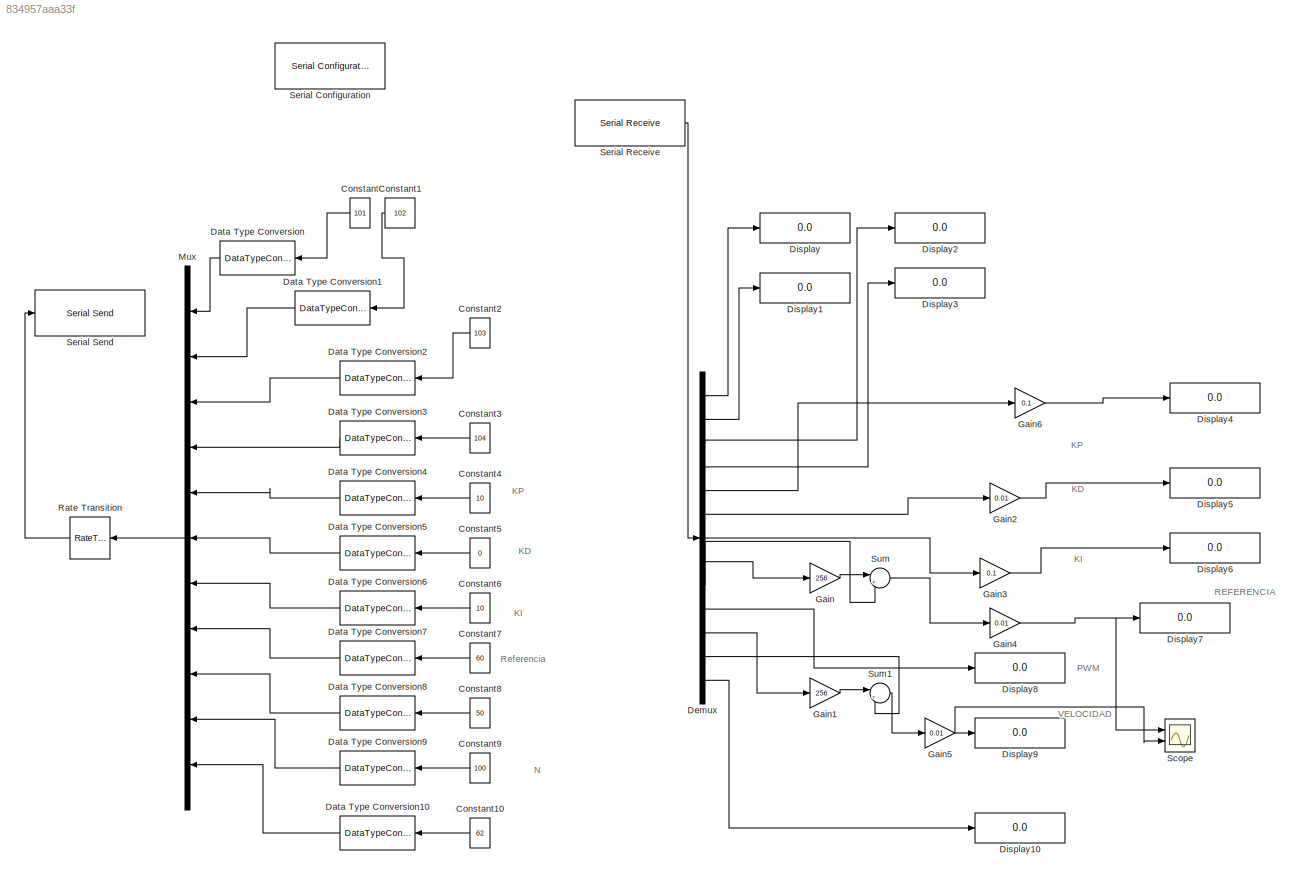
MODEL slx_834957aaa33f
KIND model
CONFIG AbsTol = auto
CONFIG FixedStep = 0.1
CONFIG MaxStep = auto
CONFIG MinStep = auto
CONFIG RelTol = 1e-3
CONFIG SampleTimeConstraint = Unconstrained
CONFIG Solver = FixedStepAuto
CONFIG SolverMode = Auto
CONFIG SolverName = FixedStepAuto
CONFIG StartTime = 0.0
CONFIG StopTime = inf
BLOCK [Constant] Constant
  SampleTime = 0.5
  Value = 101
BLOCK [Constant] Constant1
  SampleTime = 0.5
  Value = 102
BLOCK [Constant] Constant10
  SampleTime = 0.5
  Value = 62
BLOCK [Constant] Constant2
  SampleTime = 0.5
  Value = 103
BLOCK [Constant] Constant3
  SampleTime = 0.5
  Value = 104
BLOCK [Constant] Constant4
  SampleTime = 0.5
  Value = 10
BLOCK [Constant] Constant5
  SampleTime = 0.5
  Value = 0
BLOCK [Constant] Constant6
  SampleTime = 0.5
  Value = 10
BLOCK [Constant] Constant7
  SampleTime = 0.5
  Value = 60
BLOCK [Constant] Constant8
  SampleTime = 0.5
  Value = 50
BLOCK [Constant] Constant9
  SampleTime = 0.5
  Value = 100
BLOCK [DataTypeConversion] Data Type Conversion
  OutDataTypeStr = int8
  RndMeth = Floor
  SaturateOnIntegerOverflow = off
BLOCK [DataTypeConversion] Data Type Conversion1
  OutDataTypeStr = int8
  RndMeth = Floor
  SaturateOnIntegerOverflow = off
BLOCK [DataTypeConversion] Data Type Conversion10
  OutDataTypeStr = int8
  RndMeth = Floor
  SaturateOnIntegerOverflow = off
BLOCK [DataTypeConversion] Data Type Conversion2
  OutDataTypeStr = int8
  RndMeth = Floor
  SaturateOnIntegerOverflow = off
BLOCK [DataTypeConversion] Data Type Conversion3
  OutDataTypeStr = int8
  RndMeth = Floor
  SaturateOnIntegerOverflow = off
BLOCK [DataTypeConversion] Data Type Conversion4
  OutDataTypeStr = int8
  RndMeth = Floor
  SaturateOnIntegerOverflow = off
BLOCK [DataTypeConversion] Data Type Conversion5
  OutDataTypeStr = int8
  RndMeth = Floor
  SaturateOnIntegerOverflow = off
BLOCK [DataTypeConversion] Data Type Conversion6
  OutDataTypeStr = int8
  RndMeth = Floor
  SaturateOnIntegerOverflow = off
BLOCK [DataTypeConversion] Data Type Conversion7
  OutDataTypeStr = int8
  RndMeth = Floor
  SaturateOnIntegerOverflow = off
BLOCK [DataTypeConversion] Data Type Conversion8
  OutDataTypeStr = int8
  RndMeth = Floor
  SaturateOnIntegerOverflow = off
BLOCK [DataTypeConversion] Data Type Conversion9
  OutDataTypeStr = int8
  RndMeth = Floor
  SaturateOnIntegerOverflow = off
BLOCK [Demux] Demux
  DisplayOption = bar
  Outputs = 13
  Ports = [1, 13]
BLOCK [Display] Display
  Decimation = 1
  Ports = [1]
BLOCK [Display] Display1
  Decimation = 1
  Ports = [1]
BLOCK [Display] Display10
  Decimation = 1
  Ports = [1]
BLOCK [Display] Display2
  Decimation = 1
  Ports = [1]
BLOCK [Display] Display3
  Decimation = 1
  Ports = [1]
BLOCK [Display] Display4
  Decimation = 1
  Ports = [1]
BLOCK [Display] Display5
  Decimation = 1
  Ports = [1]
BLOCK [Display] Display6
  Decimation = 1
  Ports = [1]
BLOCK [Display] Display7
  Decimation = 3
  Ports = [1]
BLOCK [Display] Display8
  Decimation = 1
  Ports = [1]
BLOCK [Display] Display9
  Decimation = 1
  Ports = [1]
BLOCK [Gain] Gain
  Gain = 256
  OutDataTypeStr = Inherit: Inherit via internal rule
  ParamDataTypeStr = Inherit: Inherit via internal rule
  SaturateOnIntegerOverflow = off
BLOCK [Gain] Gain1
  Gain = 256
  OutDataTypeStr = Inherit: Inherit via internal rule
  ParamDataTypeStr = Inherit: Inherit via internal rule
  SaturateOnIntegerOverflow = off
BLOCK [Gain] Gain2
  Gain = 0.01
  OutDataTypeStr = Inherit: Inherit via internal rule
  ParamDataTypeStr = Inherit: Inherit via internal rule
  SaturateOnIntegerOverflow = off
BLOCK [Gain] Gain3
  Gain = 0.1
  OutDataTypeStr = Inherit: Inherit via internal rule
  ParamDataTypeStr = Inherit: Inherit via internal rule
  SaturateOnIntegerOverflow = off
BLOCK [Gain] Gain4
  Gain = 0.01
  OutDataTypeStr = Inherit: Inherit via internal rule
  ParamDataTypeStr = Inherit: Inherit via internal rule
  SaturateOnIntegerOverflow = off
BLOCK [Gain] Gain5
  Gain = 0.01
  OutDataTypeStr = Inherit: Inherit via internal rule
  ParamDataTypeStr = Inherit: Inherit via internal rule
  SaturateOnIntegerOverflow = off
BLOCK [Gain] Gain6
  Gain = 0.1
  OutDataTypeStr = Inherit: Inherit via internal rule
  ParamDataTypeStr = Inherit: Inherit via internal rule
  SaturateOnIntegerOverflow = off
BLOCK [Mux] Mux
  DisplayOption = bar
  Inputs = 11
  Ports = [11, 1]
BLOCK [RateTransition] Rate Transition
  OutPortSampleTimeOpt = Multiple of input port sample time
BLOCK [Scope] Scope
  NumInputPorts = 2
  Ports = [2]
  ScopeSpecificationString = Simulink.scopes.TimeScopeBlockCfg('CurrentConfiguration', extmgr.ConfigurationSet(extmgr.Configuration('Core','General UI',true),extmgr.Configuration('Core','Source UI',true),extmgr.Configuration('Sources','WiredSimulink',true),extmgr.Configuration('Visuals','Time Domain',true,'SerializedDisplays',{struct('MinYLimReal','-1.00000','MaxYLimReal','1.00000','YLabelReal','','MinYLimMag','0.00000','MaxY...<+1387ch>
BLOCK [Reference] Serial Configuration  REF=instrumentlib/Serial Configuration
  Ports = []
  Priority = -200000
  SourceBlock = instrumentlib/Serial Configuration
  SourceType = Serial Configuration
BLOCK [Reference] Serial Receive  REF=instrumentlib/Serial Receive
  Ports = [0, 1]
  SourceBlock = instrumentlib/Serial Receive
  SourceType = Serial Receive
BLOCK [Reference] Serial Send  REF=instrumentlib/Serial Send
  Ports = [1]
  SourceBlock = instrumentlib/Serial Send
  SourceType = Serial Send
BLOCK [Sum] Sum
  IconShape = round
  InputSameDT = off
  Inputs = |++
  OutDataTypeStr = Inherit: Inherit via internal rule
  Ports = [2, 1]
  SaturateOnIntegerOverflow = off
BLOCK [Sum] Sum1
  IconShape = round
  InputSameDT = off
  Inputs = |++
  OutDataTypeStr = Inherit: Inherit via internal rule
  Ports = [2, 1]
  SaturateOnIntegerOverflow = off
ANNOTATION (root): KD
ANNOTATION (root): KI
ANNOTATION (root): KP
ANNOTATION (root): N
ANNOTATION (root): PWM
ANNOTATION (root): REFERENCIA
ANNOTATION (root): Referencia
ANNOTATION (root): VELOCIDAD
LINE Constant10:1 -> Data Type Conversion10:1
LINE Constant1:1 -> Data Type Conversion1:1
LINE Constant2:1 -> Data Type Conversion2:1
LINE Constant3:1 -> Data Type Conversion3:1
LINE Constant4:1 -> Data Type Conversion4:1
LINE Constant5:1 -> Data Type Conversion5:1
LINE Constant6:1 -> Data Type Conversion6:1
LINE Constant7:1 -> Data Type Conversion7:1
LINE Constant8:1 -> Data Type Conversion8:1
LINE Constant9:1 -> Data Type Conversion9:1
LINE Constant:1 -> Data Type Conversion:1
LINE Data Type Conversion10:1 -> Mux:11
LINE Data Type Conversion1:1 -> Mux:2
LINE Data Type Conversion2:1 -> Mux:3
LINE Data Type Conversion3:1 -> Mux:4
LINE Data Type Conversion4:1 -> Mux:5
LINE Data Type Conversion5:1 -> Mux:6
LINE Data Type Conversion6:1 -> Mux:7
LINE Data Type Conversion7:1 -> Mux:8
LINE Data Type Conversion8:1 -> Mux:9
LINE Data Type Conversion9:1 -> Mux:10
LINE Data Type Conversion:1 -> Mux:1
LINE Demux:1 -> Display:1
LINE Demux:10 -> Display8:1
LINE Demux:11 -> Gain1:1
LINE Demux:12 -> Sum1:2
LINE Demux:13 -> Display10:1
LINE Demux:2 -> Display1:1
LINE Demux:3 -> Display2:1
LINE Demux:4 -> Display3:1
LINE Demux:5 -> Gain6:1
LINE Demux:6 -> Gain2:1
LINE Demux:7 -> Gain3:1
LINE Demux:8 -> Gain:1
LINE Demux:9 -> Sum:2
LINE Gain1:1 -> Sum1:1
LINE Gain2:1 -> Display5:1
LINE Gain3:1 -> Display6:1
NET Gain4:1 -> Display7:1, Scope:1
NET Gain5:1 -> Display9:1, Scope:2
LINE Gain6:1 -> Display4:1
LINE Gain:1 -> Sum:1
LINE Mux:1 -> Rate Transition:1
LINE Rate Transition:1 -> Serial Send:1
LINE Serial Receive:1 -> Demux:1
LINE Sum1:1 -> Gain5:1
LINE Sum:1 -> Gain4:1
note: NET lines group one-source signal fan-out (src -> all destinations, sorted); 1:1 wires keep LINE
